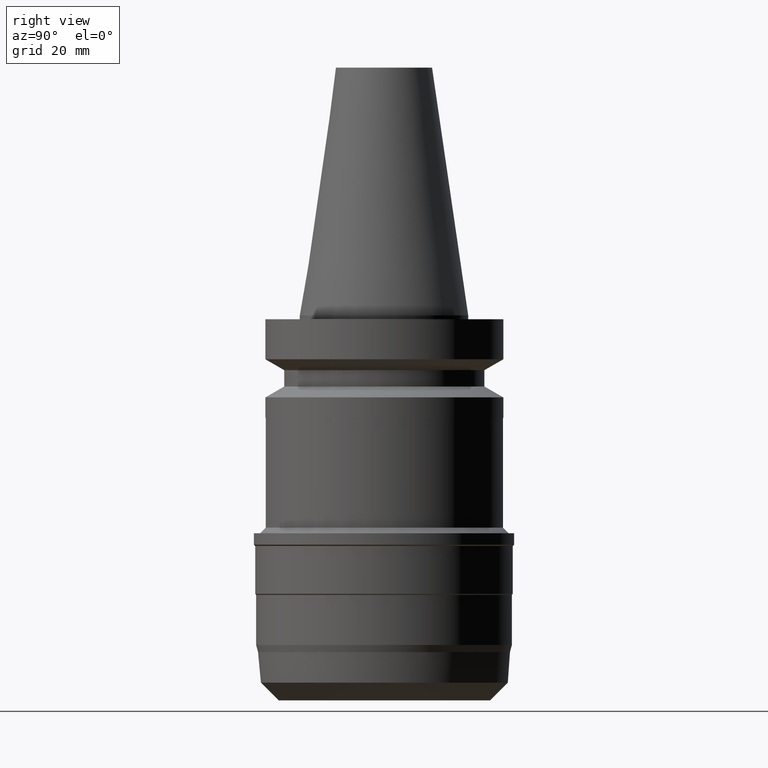
[diagram: clean part render]
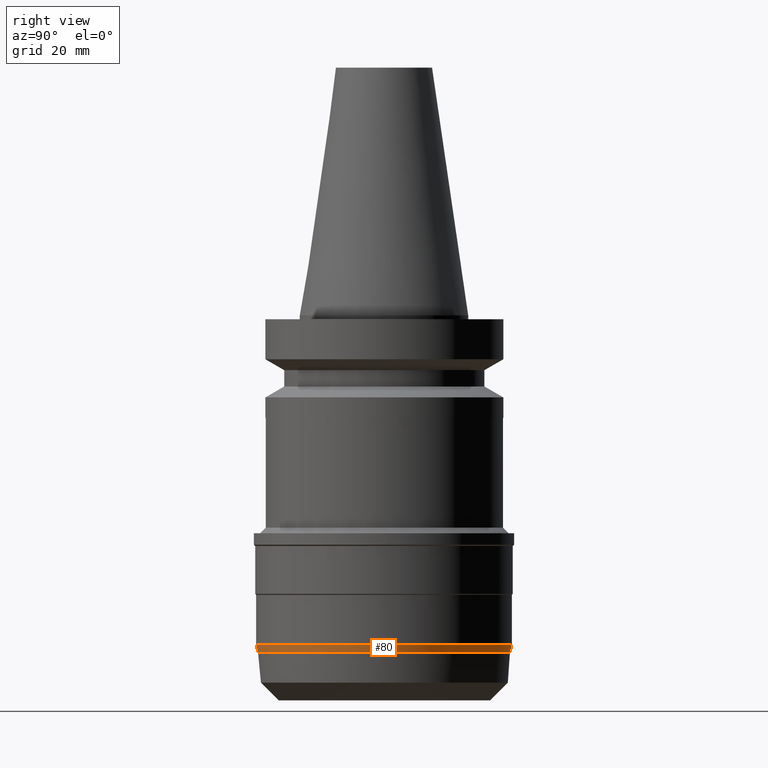
[diagram: same view with one face highlighted and labeled with its STEP entity id]
A machine part, right view. The second image highlights one B-rep face of the part: STEP entity #80.
In plain terms, the highlighted conical surface has half-angle 15 deg.
Its self-contained STEP definition (entity closure, byte-faithful):
#80=ADVANCED_FACE('Unnamed[1]',(#212,#213),#214,.T.);
#114=EDGE_CURVE('Unnamed[1]',#267,#267,#268,.T.);
#124=EDGE_CURVE('Unnamed[1]',#282,#282,#283,.T.);
#212=FACE_BOUND('',#396,.T.);
#213=FACE_BOUND('',#397,.T.);
#214=CONICAL_SURFACE('',#398,33.5,0.26179938830617);
#267=VERTEX_POINT('',#465);
#268=CIRCLE('',#466,33.75);
#282=VERTEX_POINT('',#484);
#283=CIRCLE('',#485,33.25);
#396=EDGE_LOOP('',(#609));
#397=EDGE_LOOP('',(#610));
#398=AXIS2_PLACEMENT_3D('',#611,#612,#613);
#465=CARTESIAN_POINT('',(5.32721357629098E-015,33.75,-87.0));
#466=AXIS2_PLACEMENT_3D('',#671,#672,#673);
#484=CARTESIAN_POINT('',(5.44147467795287E-015,33.25,-88.8660254));
#485=AXIS2_PLACEMENT_3D('',#688,#689,#690);
#609=ORIENTED_EDGE('',*,*,#124,.F.);
#610=ORIENTED_EDGE('',*,*,#114,.T.);
#611=CARTESIAN_POINT('',(5.38434412712193E-015,1.07686882542439E-014,-87.9330127));
#612=DIRECTION('',(-6.12323399573677E-017,-1.22464679914733E-016,1.0));
#613=DIRECTION('',(-1.23259516440783E-032,1.0,1.22464679914733E-016));
#671=CARTESIAN_POINT('',(5.32721357629098E-015,1.0654427152582E-014,-87.0));
#672=DIRECTION('',(6.12323399573677E-017,1.22464679914729E-016,-1.0));
#673=DIRECTION('',(-1.23259516440783E-032,1.0,1.22464679914729E-016));
#688=CARTESIAN_POINT('',(5.44147467795287E-015,1.08829493559057E-014,-88.8660254));
#689=DIRECTION('',(6.12323399573677E-017,1.22464679914738E-016,-1.0));
#690=DIRECTION('',(-1.23259516440783E-032,1.0,1.22464679914738E-016));